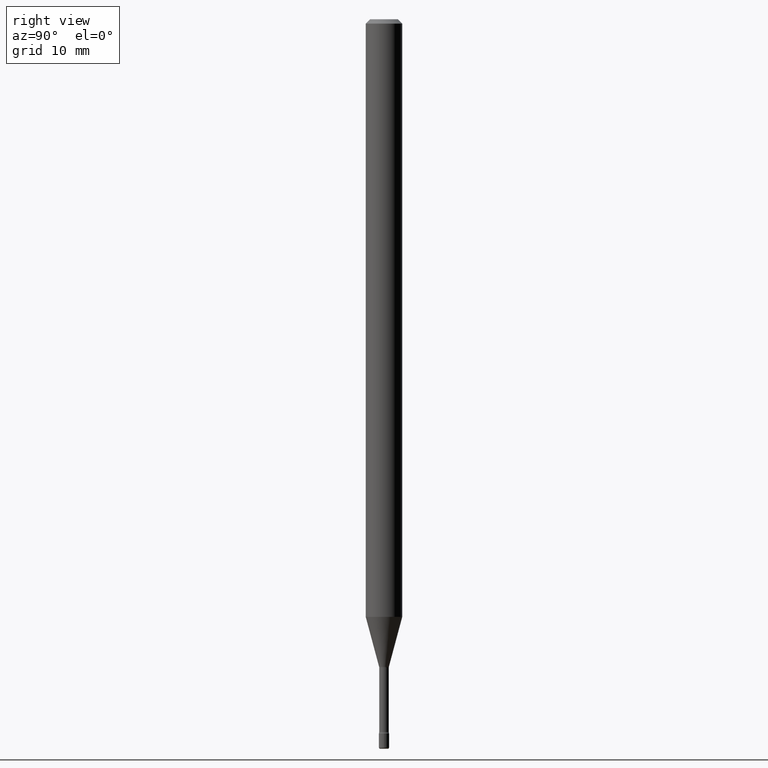
[diagram: clean part render]
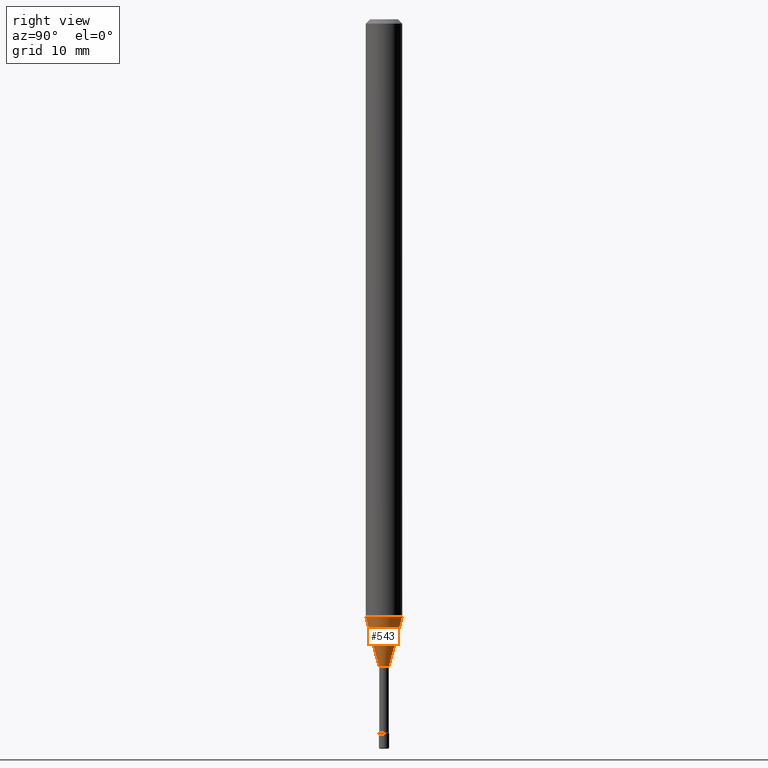
[diagram: same view with one face highlighted and labeled with its STEP entity id]
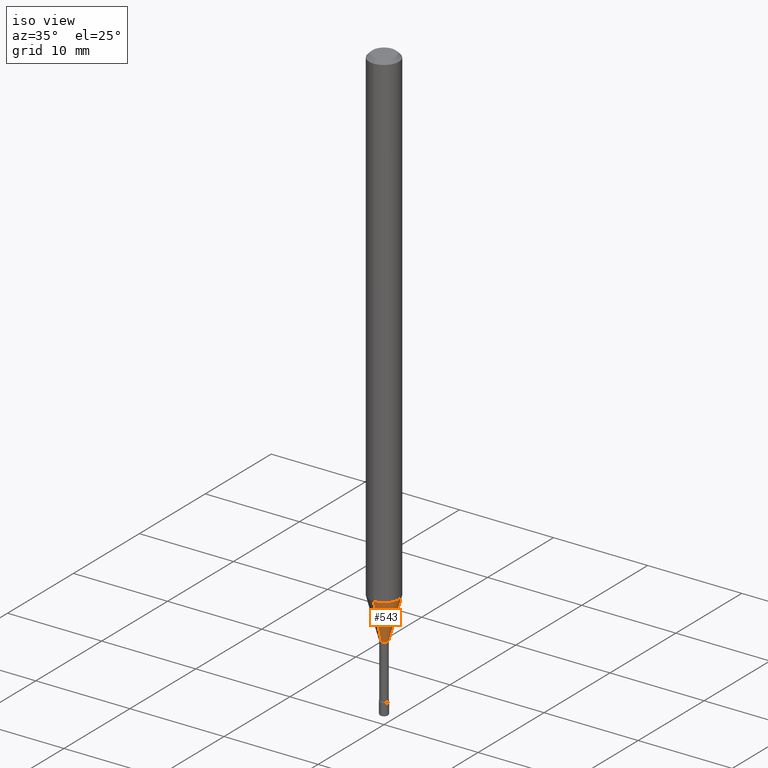
[diagram: same view with one face highlighted and labeled with its STEP entity id]
A machine part, right view. The second image highlights one B-rep face of the part: STEP entity #543.
A second angle (iso view) of the same face is appended — the face is thin or edge-on in the first view.
In plain terms, the highlighted conical surface has half-angle 15 deg.
Its self-contained STEP definition (entity closure, byte-faithful):
#1 = EDGE_CURVE ( 'NONE', #440, #310, #3, .T. ) ;
#3 = CIRCLE ( 'NONE', #296, 0.01696111260566397771 ) ;
#25 = EDGE_CURVE ( 'NONE', #252, #533, #280, .T. ) ;
#26 = ORIENTED_EDGE ( 'NONE', *, *, #25, .F. ) ;
#32 = EDGE_CURVE ( 'NONE', #440, #252, #329, .T. ) ;
#41 = DIRECTION ( 'NONE',  ( -6.982962677686266711E-15, -1.000000000000000000, 0.000000000000000000 ) ) ;
#75 = CARTESIAN_POINT ( 'NONE',  ( -1.184388162973313820E-16, -0.01696111260567172499, -2.218092501787273019 ) ) ;
#83 = CARTESIAN_POINT ( 'NONE',  ( 4.440892098501126102E-16, 0.06249999999999283906, -2.048139060311453985 ) ) ;
#113 = CARTESIAN_POINT ( 'NONE',  ( 5.008607626592616382E-29, -7.151114571800326842E-15, -2.048139060311453541 ) ) ;
#119 = EDGE_LOOP ( 'NONE', ( #305, #542, #26, #177 ) ) ;
#143 = CARTESIAN_POINT ( 'NONE',  ( 1.205159535236902748E-16, 0.01696111260565623391, -2.218092501787273019 ) ) ;
#159 = AXIS2_PLACEMENT_3D ( 'NONE', #113, #251, #561 ) ;
#170 = CARTESIAN_POINT ( 'NONE',  ( 2.823025816869015904E-16, 0.01696111260565623738, -2.218092501787273019 ) ) ;
#177 = ORIENTED_EDGE ( 'NONE', *, *, #32, .F. ) ;
#197 = DIRECTION ( 'NONE',  ( -6.982962677686266711E-15, -1.000000000000000000, 0.000000000000000000 ) ) ;
#216 = FACE_OUTER_BOUND ( 'NONE', #119, .T. ) ;
#230 = VECTOR ( 'NONE', #511, 39.37007874015748854 ) ;
#236 = CARTESIAN_POINT ( 'NONE',  ( -4.364351673553416753E-16, -0.06250000000000717482, -2.048139060311453541 ) ) ;
#251 = DIRECTION ( 'NONE',  ( -2.445443145755432371E-29, 3.491518086038982995E-15, 1.000000000000000000 ) ) ;
#252 = VERTEX_POINT ( 'NONE', #236 ) ;
#280 = CIRCLE ( 'NONE', #159, 0.06250000000000000000 ) ;
#296 = AXIS2_PLACEMENT_3D ( 'NONE', #405, #414, #197 ) ;
#305 = ORIENTED_EDGE ( 'NONE', *, *, #1, .T. ) ;
#310 = VERTEX_POINT ( 'NONE', #170 ) ;
#329 = LINE ( 'NONE', #75, #230 ) ;
#330 = VECTOR ( 'NONE', #455, 39.37007874015748854 ) ;
#373 = EDGE_CURVE ( 'NONE', #310, #533, #541, .T. ) ;
#405 = CARTESIAN_POINT ( 'NONE',  ( 5.424219105147207010E-29, -7.744510086497720348E-15, -2.218092501787273019 ) ) ;
#414 = DIRECTION ( 'NONE',  ( -2.445443145755432371E-29, 3.491518086038982995E-15, 1.000000000000000000 ) ) ;
#440 = VERTEX_POINT ( 'NONE', #450 ) ;
#450 = CARTESIAN_POINT ( 'NONE',  ( -1.184388162973313820E-16, -0.01696111260567172499, -2.218092501787273019 ) ) ;
#455 = DIRECTION ( 'NONE',  ( 1.839019923739598738E-15, 0.2588190451025247363, 0.9659258262890673130 ) ) ;
#471 = DIRECTION ( 'NONE',  ( -2.445443145755432371E-29, 3.491518086038982995E-15, 1.000000000000000000 ) ) ;
#477 = CONICAL_SURFACE ( 'NONE', #546, 0.01696111260566397771, 0.2617993877991500740 ) ;
#511 = DIRECTION ( 'NONE',  ( -1.807323732225328562E-15, -0.2588190451025179639, 0.9659258262890690894 ) ) ;
#528 = CARTESIAN_POINT ( 'NONE',  ( 5.424219105147207010E-29, -7.744510086497720348E-15, -2.218092501787273019 ) ) ;
#533 = VERTEX_POINT ( 'NONE', #83 ) ;
#541 = LINE ( 'NONE', #143, #330 ) ;
#542 = ORIENTED_EDGE ( 'NONE', *, *, #373, .T. ) ;
#543 = ADVANCED_FACE ( 'NONE', ( #216 ), #477, .T. ) ;
#546 = AXIS2_PLACEMENT_3D ( 'NONE', #528, #471, #41 ) ;
#561 = DIRECTION ( 'NONE',  ( -6.982962677686265922E-15, -1.000000000000000000, 4.370956789862821150E-15 ) ) ;